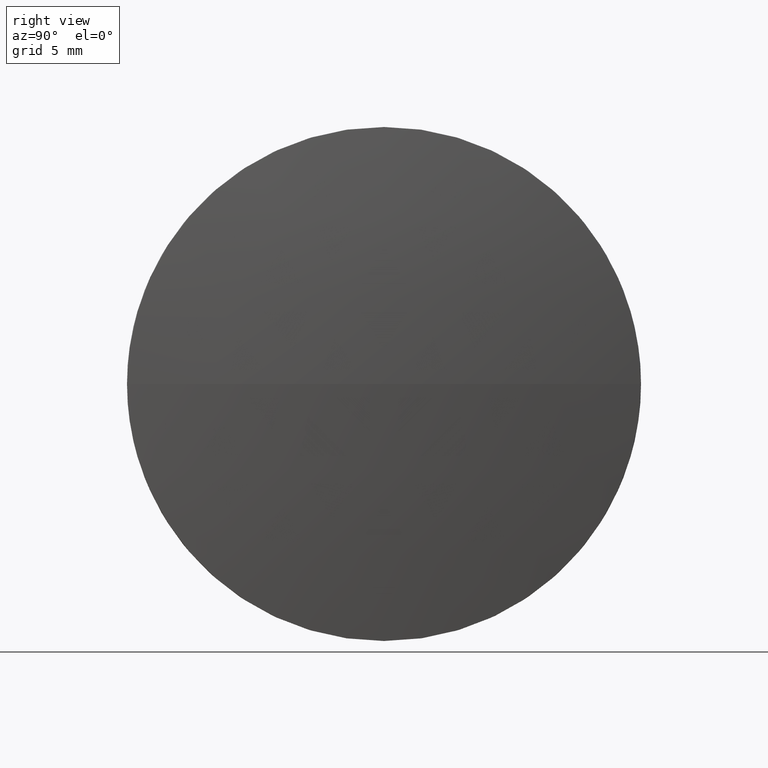
[diagram: clean part render]
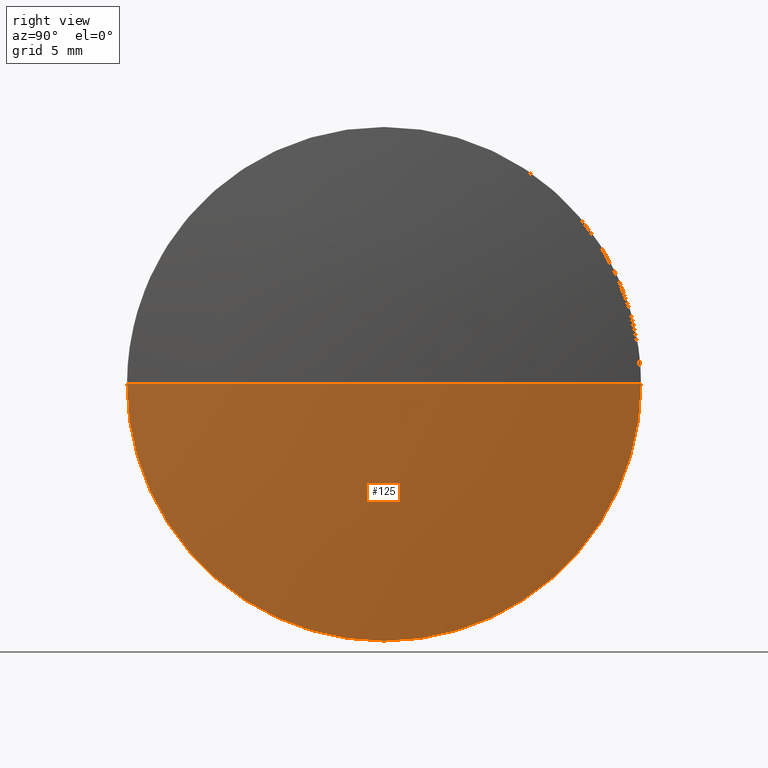
[diagram: same view with one face highlighted and labeled with its STEP entity id]
A machine part, right view. The second image highlights one B-rep face of the part: STEP entity #125.
In plain terms, the highlighted spherical surface has radius 101.206 mm.
Its self-contained STEP definition (entity closure, byte-faithful):
#1 = EDGE_CURVE ( 'NONE', #29, #127, #64, .T. ) ;
#4 = CARTESIAN_POINT ( 'NONE',  ( 382.2142390152484900, 287.4786788978058200, 0.0000000000000000000 ) ) ;
#5 = CARTESIAN_POINT ( 'NONE',  ( 482.6204890152488900, 287.4786788978059300, 0.0000000000000000000 ) ) ;
#6 = CARTESIAN_POINT ( 'NONE',  ( 382.2142390152484900, 287.4786788978058200, 0.0000000000000000000 ) ) ;
#8 = CIRCLE ( 'NONE', #54, 12.70000000000004500 ) ;
#12 = ORIENTED_EDGE ( 'NONE', *, *, #1, .T. ) ;
#14 = DIRECTION ( 'NONE',  ( 0.0000000000000000000, 1.000000000000000000, 1.224646799147353200E-016 ) ) ;
#17 = EDGE_CURVE ( 'NONE', #159, #138, #8, .T. ) ;
#29 = VERTEX_POINT ( 'NONE', #36 ) ;
#33 = ORIENTED_EDGE ( 'NONE', *, *, #17, .F. ) ;
#34 = EDGE_CURVE ( 'NONE', #29, #159, #97, .T. ) ;
#36 = CARTESIAN_POINT ( 'NONE',  ( 483.4204890152489000, 287.4786788978058200, 0.0000000000000000000 ) ) ;
#37 = CARTESIAN_POINT ( 'NONE',  ( 482.6204890152488900, 300.1786788978060400, 0.0000000000000000000 ) ) ;
#45 = DIRECTION ( 'NONE',  ( 0.0000000000000000000, 0.0000000000000000000, 1.000000000000000000 ) ) ;
#54 = AXIS2_PLACEMENT_3D ( 'NONE', #5, #101, #45 ) ;
#61 = SPHERICAL_SURFACE ( 'NONE', #74, 101.2062500000004400 ) ;
#64 = CIRCLE ( 'NONE', #155, 101.2062500000004400 ) ;
#68 = EDGE_LOOP ( 'NONE', ( #99, #12, #83, #33 ) ) ;
#74 = AXIS2_PLACEMENT_3D ( 'NONE', #181, #129, #145 ) ;
#75 = AXIS2_PLACEMENT_3D ( 'NONE', #6, #163, #89 ) ;
#83 = ORIENTED_EDGE ( 'NONE', *, *, #169, .F. ) ;
#89 = DIRECTION ( 'NONE',  ( 1.000000000000000000, 0.0000000000000000000, 0.0000000000000000000 ) ) ;
#97 = CIRCLE ( 'NONE', #75, 101.2062500000004400 ) ;
#99 = ORIENTED_EDGE ( 'NONE', *, *, #34, .F. ) ;
#101 = DIRECTION ( 'NONE',  ( -1.000000000000000000, -0.0000000000000000000, -0.0000000000000000000 ) ) ;
#105 = CARTESIAN_POINT ( 'NONE',  ( 482.6204890152488900, 287.4786788978059300, -12.70000000000004500 ) ) ;
#120 = DIRECTION ( 'NONE',  ( -1.000000000000000000, -0.0000000000000000000, -0.0000000000000000000 ) ) ;
#125 = ADVANCED_FACE ( 'NONE', ( #130 ), #61, .T. ) ;
#127 = VERTEX_POINT ( 'NONE', #161 ) ;
#129 = DIRECTION ( 'NONE',  ( -0.0000000000000000000, 0.0000000000000000000, -1.000000000000000000 ) ) ;
#130 = FACE_OUTER_BOUND ( 'NONE', #68, .T. ) ;
#137 = DIRECTION ( 'NONE',  ( 0.0000000000000000000, 0.0000000000000000000, 1.000000000000000000 ) ) ;
#138 = VERTEX_POINT ( 'NONE', #105 ) ;
#143 = DIRECTION ( 'NONE',  ( 0.0000000000000000000, 1.224646799147353200E-016, -1.000000000000000000 ) ) ;
#145 = DIRECTION ( 'NONE',  ( 0.0000000000000000000, 1.000000000000000000, 0.0000000000000000000 ) ) ;
#148 = CIRCLE ( 'NONE', #150, 12.70000000000004500 ) ;
#150 = AXIS2_PLACEMENT_3D ( 'NONE', #152, #120, #137 ) ;
#152 = CARTESIAN_POINT ( 'NONE',  ( 482.6204890152488900, 287.4786788978059300, 0.0000000000000000000 ) ) ;
#155 = AXIS2_PLACEMENT_3D ( 'NONE', #4, #143, #14 ) ;
#159 = VERTEX_POINT ( 'NONE', #37 ) ;
#161 = CARTESIAN_POINT ( 'NONE',  ( 482.6204890152488900, 274.7786788978057200, -1.555301434917146900E-015 ) ) ;
#163 = DIRECTION ( 'NONE',  ( -0.0000000000000000000, 0.0000000000000000000, 1.000000000000000000 ) ) ;
#169 = EDGE_CURVE ( 'NONE', #138, #127, #148, .T. ) ;
#181 = CARTESIAN_POINT ( 'NONE',  ( 382.2142390152484900, 287.4786788978058200, 0.0000000000000000000 ) ) ;